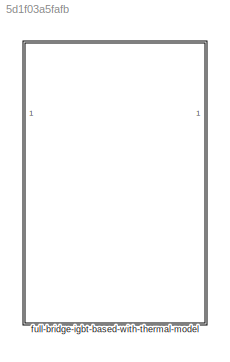
MODEL slx_5d1f03a5fafb
KIND library
CONFIG AbsTol = auto
CONFIG EnableMultiTasking = off
CONFIG FixedStep = auto
CONFIG MaxStep = auto
CONFIG MinStep = auto
CONFIG RelTol = 1e-3
CONFIG SampleTimeConstraint = Unconstrained
CONFIG SolverName = VariableStepAuto
CONFIG StartTime = 0.0
CONFIG StopTime = 10.0
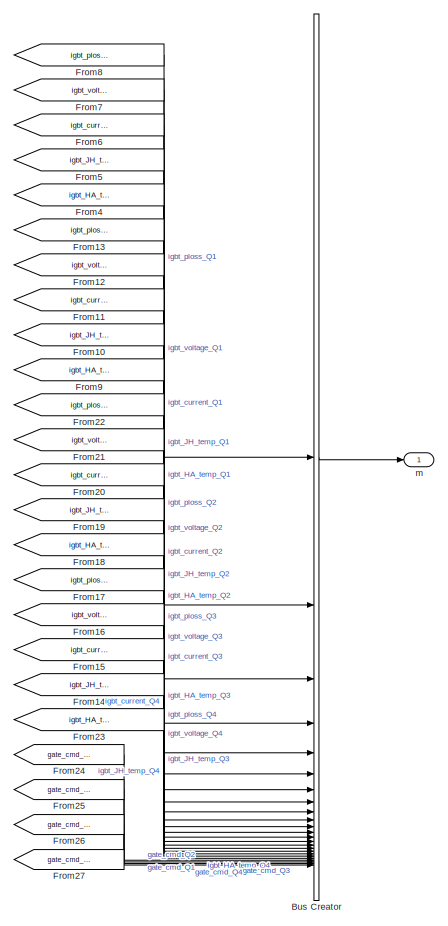
[diagram: full-bridge-igbt-based-with-thermal-model - part 1/2, right side, full height]
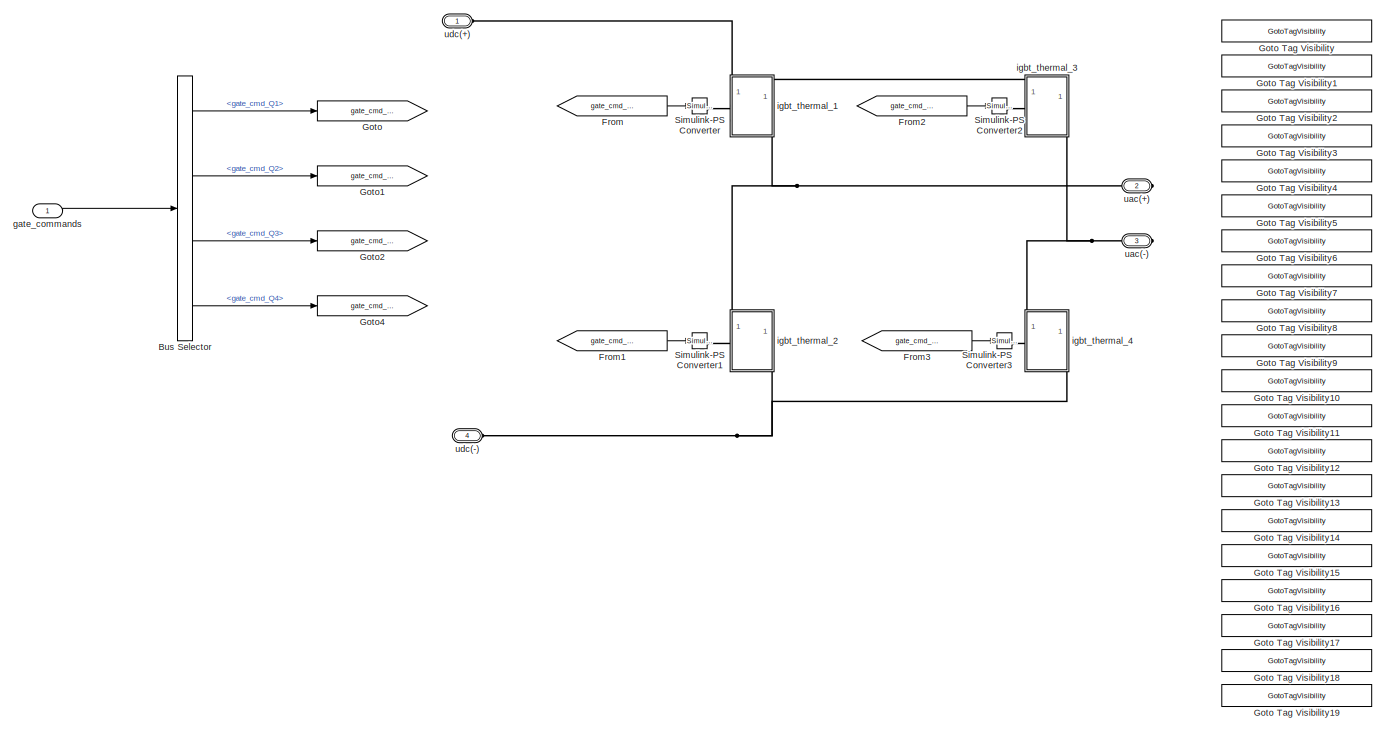
[diagram: full-bridge-igbt-based-with-thermal-model - part 2/2, most of the canvas]
BLOCK [SubSystem] full-bridge-igbt-based-with-thermal-model
BLOCK [BusCreator] full-bridge-igbt-based-with-thermal-model/Bus Creator
  DisplayOption = bar
  InheritFromInputs = on
  Inputs = 24
BLOCK [BusSelector] full-bridge-igbt-based-with-thermal-model/Bus Selector
  OutputSignals = gate_cmd_Q1,gate_cmd_Q2,gate_cmd_Q3,gate_cmd_Q4
BLOCK [From] full-bridge-igbt-based-with-thermal-model/From
  GotoTag = gate_cmd_Q1
BLOCK [From] full-bridge-igbt-based-with-thermal-model/From1
  GotoTag = gate_cmd_Q2
BLOCK [From] full-bridge-igbt-based-with-thermal-model/From10
  GotoTag = igbt_JH_temp_Q2
  TagVisibility = scoped
BLOCK [From] full-bridge-igbt-based-with-thermal-model/From11
  GotoTag = igbt_current_Q2
  TagVisibility = scoped
BLOCK [From] full-bridge-igbt-based-with-thermal-model/From12
  GotoTag = igbt_voltage_Q2
  TagVisibility = scoped
BLOCK [From] full-bridge-igbt-based-with-thermal-model/From13
  GotoTag = igbt_ploss_Q2
  TagVisibility = scoped
BLOCK [From] full-bridge-igbt-based-with-thermal-model/From14
  GotoTag = igbt_JH_temp_Q4
  TagVisibility = scoped
BLOCK [From] full-bridge-igbt-based-with-thermal-model/From15
  GotoTag = igbt_current_Q4
  TagVisibility = scoped
BLOCK [From] full-bridge-igbt-based-with-thermal-model/From16
  GotoTag = igbt_voltage_Q4
  TagVisibility = scoped
BLOCK [From] full-bridge-igbt-based-with-thermal-model/From17
  GotoTag = igbt_ploss_Q4
  TagVisibility = scoped
BLOCK [From] full-bridge-igbt-based-with-thermal-model/From18
  GotoTag = igbt_HA_temp_Q3
  TagVisibility = scoped
BLOCK [From] full-bridge-igbt-based-with-thermal-model/From19
  GotoTag = igbt_JH_temp_Q3
  TagVisibility = scoped
BLOCK [From] full-bridge-igbt-based-with-thermal-model/From2
  GotoTag = gate_cmd_Q3
BLOCK [From] full-bridge-igbt-based-with-thermal-model/From20
  GotoTag = igbt_current_Q3
  TagVisibility = scoped
BLOCK [From] full-bridge-igbt-based-with-thermal-model/From21
  GotoTag = igbt_voltage_Q3
  TagVisibility = scoped
BLOCK [From] full-bridge-igbt-based-with-thermal-model/From22
  GotoTag = igbt_ploss_Q3
  TagVisibility = scoped
BLOCK [From] full-bridge-igbt-based-with-thermal-model/From23
  GotoTag = igbt_HA_temp_Q4
  TagVisibility = scoped
BLOCK [From] full-bridge-igbt-based-with-thermal-model/From24
  GotoTag = gate_cmd_Q1
BLOCK [From] full-bridge-igbt-based-with-thermal-model/From25
  GotoTag = gate_cmd_Q2
BLOCK [From] full-bridge-igbt-based-with-thermal-model/From26
  GotoTag = gate_cmd_Q3
BLOCK [From] full-bridge-igbt-based-with-thermal-model/From27
  GotoTag = gate_cmd_Q4
BLOCK [From] full-bridge-igbt-based-with-thermal-model/From3
  GotoTag = gate_cmd_Q4
BLOCK [From] full-bridge-igbt-based-with-thermal-model/From4
  GotoTag = igbt_HA_temp_Q1
BLOCK [From] full-bridge-igbt-based-with-thermal-model/From5
  GotoTag = igbt_JH_temp_Q1
BLOCK [From] full-bridge-igbt-based-with-thermal-model/From6
  GotoTag = igbt_current_Q1
BLOCK [From] full-bridge-igbt-based-with-thermal-model/From7
  GotoTag = igbt_voltage_Q1
BLOCK [From] full-bridge-igbt-based-with-thermal-model/From8
  GotoTag = igbt_ploss_Q1
BLOCK [From] full-bridge-igbt-based-with-thermal-model/From9
  GotoTag = igbt_HA_temp_Q2
  TagVisibility = scoped
BLOCK [Goto] full-bridge-igbt-based-with-thermal-model/Goto
  GotoTag = gate_cmd_Q1
BLOCK [GotoTagVisibility] full-bridge-igbt-based-with-thermal-model/Goto Tag Visibility
  GotoTag = igbt_ploss_Q1
BLOCK [GotoTagVisibility] full-bridge-igbt-based-with-thermal-model/Goto Tag Visibility1
  GotoTag = igbt_voltage_Q1
BLOCK [GotoTagVisibility] full-bridge-igbt-based-with-thermal-model/Goto Tag Visibility10
  GotoTag = igbt_ploss_Q3
BLOCK [GotoTagVisibility] full-bridge-igbt-based-with-thermal-model/Goto Tag Visibility11
  GotoTag = igbt_voltage_Q3
BLOCK [GotoTagVisibility] full-bridge-igbt-based-with-thermal-model/Goto Tag Visibility12
  GotoTag = igbt_current_Q3
BLOCK [GotoTagVisibility] full-bridge-igbt-based-with-thermal-model/Goto Tag Visibility13
  GotoTag = igbt_JH_temp_Q3
BLOCK [GotoTagVisibility] full-bridge-igbt-based-with-thermal-model/Goto Tag Visibility14
  GotoTag = igbt_HA_temp_Q3
  NameLocation = top
BLOCK [GotoTagVisibility] full-bridge-igbt-based-with-thermal-model/Goto Tag Visibility15
  GotoTag = igbt_ploss_Q4
BLOCK [GotoTagVisibility] full-bridge-igbt-based-with-thermal-model/Goto Tag Visibility16
  GotoTag = igbt_voltage_Q4
BLOCK [GotoTagVisibility] full-bridge-igbt-based-with-thermal-model/Goto Tag Visibility17
  GotoTag = igbt_current_Q4
BLOCK [GotoTagVisibility] full-bridge-igbt-based-with-thermal-model/Goto Tag Visibility18
  GotoTag = igbt_JH_temp_Q4
BLOCK [GotoTagVisibility] full-bridge-igbt-based-with-thermal-model/Goto Tag Visibility19
  GotoTag = igbt_HA_temp_Q4
  NameLocation = top
BLOCK [GotoTagVisibility] full-bridge-igbt-based-with-thermal-model/Goto Tag Visibility2
  GotoTag = igbt_current_Q1
BLOCK [GotoTagVisibility] full-bridge-igbt-based-with-thermal-model/Goto Tag Visibility3
  GotoTag = igbt_JH_temp_Q1
BLOCK [GotoTagVisibility] full-bridge-igbt-based-with-thermal-model/Goto Tag Visibility4
  GotoTag = igbt_HA_temp_Q1
BLOCK [GotoTagVisibility] full-bridge-igbt-based-with-thermal-model/Goto Tag Visibility5
  GotoTag = igbt_ploss_Q2
BLOCK [GotoTagVisibility] full-bridge-igbt-based-with-thermal-model/Goto Tag Visibility6
  GotoTag = igbt_voltage_Q2
BLOCK [GotoTagVisibility] full-bridge-igbt-based-with-thermal-model/Goto Tag Visibility7
  GotoTag = igbt_current_Q2
BLOCK [GotoTagVisibility] full-bridge-igbt-based-with-thermal-model/Goto Tag Visibility8
  GotoTag = igbt_JH_temp_Q2
BLOCK [GotoTagVisibility] full-bridge-igbt-based-with-thermal-model/Goto Tag Visibility9
  GotoTag = igbt_HA_temp_Q2
  NameLocation = top
BLOCK [Goto] full-bridge-igbt-based-with-thermal-model/Goto1
  GotoTag = gate_cmd_Q2
BLOCK [Goto] full-bridge-igbt-based-with-thermal-model/Goto2
  GotoTag = gate_cmd_Q3
BLOCK [Goto] full-bridge-igbt-based-with-thermal-model/Goto4
  GotoTag = gate_cmd_Q4
BLOCK [Reference] full-bridge-igbt-based-with-thermal-model/Simulink-PS Converter  REF=nesl_utility/Simulink-PS
Converter
  SourceBlock = nesl_utility/Simulink-PS\nConverter
  SourceType = Simulink-PS\nConverter
BLOCK [Reference] full-bridge-igbt-based-with-thermal-model/Simulink-PS Converter1  REF=nesl_utility/Simulink-PS
Converter
  SourceBlock = nesl_utility/Simulink-PS\nConverter
  SourceType = Simulink-PS\nConverter
BLOCK [Reference] full-bridge-igbt-based-with-thermal-model/Simulink-PS Converter2  REF=nesl_utility/Simulink-PS
Converter
  SourceBlock = nesl_utility/Simulink-PS\nConverter
  SourceType = Simulink-PS\nConverter
BLOCK [Reference] full-bridge-igbt-based-with-thermal-model/Simulink-PS Converter3  REF=nesl_utility/Simulink-PS
Converter
  SourceBlock = nesl_utility/Simulink-PS\nConverter
  SourceType = Simulink-PS\nConverter
BLOCK [Inport] full-bridge-igbt-based-with-thermal-model/gate_commands
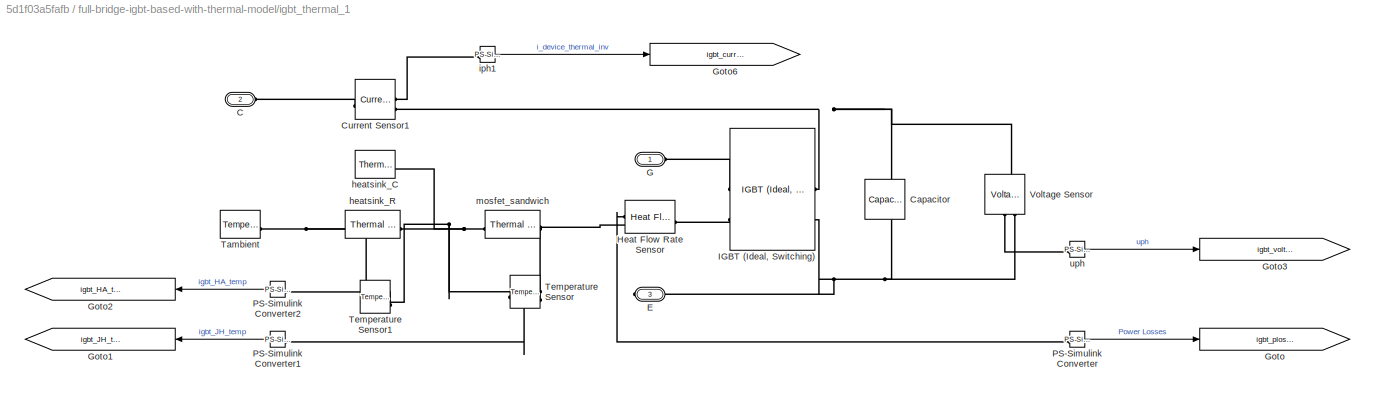
BLOCK [SubSystem] full-bridge-igbt-based-with-thermal-model/igbt_thermal_1
  NameLocation = right
  PortSchema = {"entries":[{"content":{"sides":[{"content":{"connectorIds":["LConn1"]},"type":"ConnectorPlacement.EquallySpacedRectSide","uuid":"9277da8d-d460-43e6-8478-dd662f15d226"},{"content":{"connectorIds":[],"side":"RIGHT"},"type":"ConnectorPlacement.EquallySpacedRectSide","uuid":"a7ece396-f1d9-4f4f-a05b-db1fc65d6e1d"},{"content":{"connectorIds":["LConn2"],"side":"TOP"},"type":"ConnectorPlacement.EquallySp...<+397ch>  <repeated x4 — deduplicated; at blocks: igbt_thermal_1, igbt_thermal_2, igbt_thermal_3, igbt_thermal_4>
BLOCK [PMIOPort] full-bridge-igbt-based-with-thermal-model/igbt_thermal_1/C
  Port = 2
  Side = Left
BLOCK [Reference] full-bridge-igbt-based-with-thermal-model/igbt_thermal_1/Capacitor  REF=fl_lib/Electrical/Electrical Elements/Capacitor
  NameLocation = left
  SourceBlock = fl_lib/Electrical/Electrical Elements/Capacitor
  SourceType = Capacitor
BLOCK [Reference] full-bridge-igbt-based-with-thermal-model/igbt_thermal_1/Current Sensor1  REF=fl_lib/Electrical/Electrical Sensors/Current Sensor
  SourceBlock = fl_lib/Electrical/Electrical Sensors/Current Sensor
  SourceType = Current Sensor
BLOCK [PMIOPort] full-bridge-igbt-based-with-thermal-model/igbt_thermal_1/E
  Port = 3
  Side = Right
BLOCK [PMIOPort] full-bridge-igbt-based-with-thermal-model/igbt_thermal_1/G
  NameLocation = top
  Side = Left
BLOCK [Goto] full-bridge-igbt-based-with-thermal-model/igbt_thermal_1/Goto
  GotoTag = igbt_ploss_Q1
  TagVisibility = scoped
BLOCK [Goto] full-bridge-igbt-based-with-thermal-model/igbt_thermal_1/Goto1
  GotoTag = igbt_JH_temp_Q1
  NameLocation = top
  TagVisibility = scoped
BLOCK [Goto] full-bridge-igbt-based-with-thermal-model/igbt_thermal_1/Goto2
  GotoTag = igbt_HA_temp_Q1
  NameLocation = top
  TagVisibility = scoped
BLOCK [Goto] full-bridge-igbt-based-with-thermal-model/igbt_thermal_1/Goto3
  GotoTag = igbt_voltage_Q1
  TagVisibility = scoped
BLOCK [Goto] full-bridge-igbt-based-with-thermal-model/igbt_thermal_1/Goto6
  GotoTag = igbt_current_Q1
  TagVisibility = scoped
BLOCK [Reference] full-bridge-igbt-based-with-thermal-model/igbt_thermal_1/Heat Flow Rate Sensor  REF=fl_lib/Thermal/Thermal Sensors/Heat Flow Rate
Sensor
  SourceBlock = fl_lib/Thermal/Thermal Sensors/Heat Flow Rate\nSensor
  SourceType = Heat Flow Rate\nSensor
BLOCK [Reference] full-bridge-igbt-based-with-thermal-model/igbt_thermal_1/IGBT (Ideal, Switching)  REF=ee_lib/Semiconductors &
Converters/IGBT
(Ideal,
Switching)
  SourceBlock = ee_lib/Semiconductors &\nConverters/IGBT\n(Ideal,\nSwitching)
  SourceType = IGBT\n(Ideal,\nSwitching)
BLOCK [Reference] full-bridge-igbt-based-with-thermal-model/igbt_thermal_1/PS-Simulink Converter  REF=nesl_utility/PS-Simulink
Converter
  SourceBlock = nesl_utility/PS-Simulink\nConverter
  SourceType = PS-Simulink\nConverter
BLOCK [Reference] full-bridge-igbt-based-with-thermal-model/igbt_thermal_1/PS-Simulink Converter1  REF=nesl_utility/PS-Simulink
Converter
  SourceBlock = nesl_utility/PS-Simulink\nConverter
  SourceType = PS-Simulink\nConverter
BLOCK [Reference] full-bridge-igbt-based-with-thermal-model/igbt_thermal_1/PS-Simulink Converter2  REF=nesl_utility/PS-Simulink
Converter
  NameLocation = right
  SourceBlock = nesl_utility/PS-Simulink\nConverter
  SourceType = PS-Simulink\nConverter
BLOCK [Reference] full-bridge-igbt-based-with-thermal-model/igbt_thermal_1/Tambient  REF=fl_lib/Thermal/Thermal Sources/Temperature Source
  SourceBlock = fl_lib/Thermal/Thermal Sources/Temperature Source
  SourceType = Temperature Source
BLOCK [Reference] full-bridge-igbt-based-with-thermal-model/igbt_thermal_1/Temperature Sensor  REF=fl_lib/Thermal/Thermal Sensors/Temperature Sensor
  NameLocation = top
  SourceBlock = fl_lib/Thermal/Thermal Sensors/Temperature Sensor
  SourceType = Temperature Sensor
BLOCK [Reference] full-bridge-igbt-based-with-thermal-model/igbt_thermal_1/Temperature Sensor1  REF=fl_lib/Thermal/Thermal Sensors/Temperature Sensor
  NameLocation = top
  SourceBlock = fl_lib/Thermal/Thermal Sensors/Temperature Sensor
  SourceType = Temperature Sensor
BLOCK [Reference] full-bridge-igbt-based-with-thermal-model/igbt_thermal_1/Voltage Sensor  REF=fl_lib/Electrical/Electrical Sensors/Voltage Sensor
  NameLocation = right
  SourceBlock = fl_lib/Electrical/Electrical Sensors/Voltage Sensor
  SourceType = Voltage Sensor
BLOCK [Reference] full-bridge-igbt-based-with-thermal-model/igbt_thermal_1/heatsink_C  REF=fl_lib/Thermal/Thermal Elements/Thermal Mass
  SourceBlock = fl_lib/Thermal/Thermal Elements/Thermal Mass
  SourceType = Thermal Mass
BLOCK [Reference] full-bridge-igbt-based-with-thermal-model/igbt_thermal_1/heatsink_R  REF=fl_lib/Thermal/Thermal Elements/Thermal Resistance
  SourceBlock = fl_lib/Thermal/Thermal Elements/Thermal Resistance
  SourceType = Thermal Resistance
BLOCK [Reference] full-bridge-igbt-based-with-thermal-model/igbt_thermal_1/iph1  REF=nesl_utility/PS-Simulink
Converter
  SourceBlock = nesl_utility/PS-Simulink\nConverter
  SourceType = PS-Simulink\nConverter
BLOCK [Reference] full-bridge-igbt-based-with-thermal-model/igbt_thermal_1/mosfet_sandwich  REF=fl_lib/Thermal/Thermal Elements/Thermal Resistance
  SourceBlock = fl_lib/Thermal/Thermal Elements/Thermal Resistance
  SourceType = Thermal Resistance
BLOCK [Reference] full-bridge-igbt-based-with-thermal-model/igbt_thermal_1/uph  REF=nesl_utility/PS-Simulink
Converter
  SourceBlock = nesl_utility/PS-Simulink\nConverter
  SourceType = PS-Simulink\nConverter
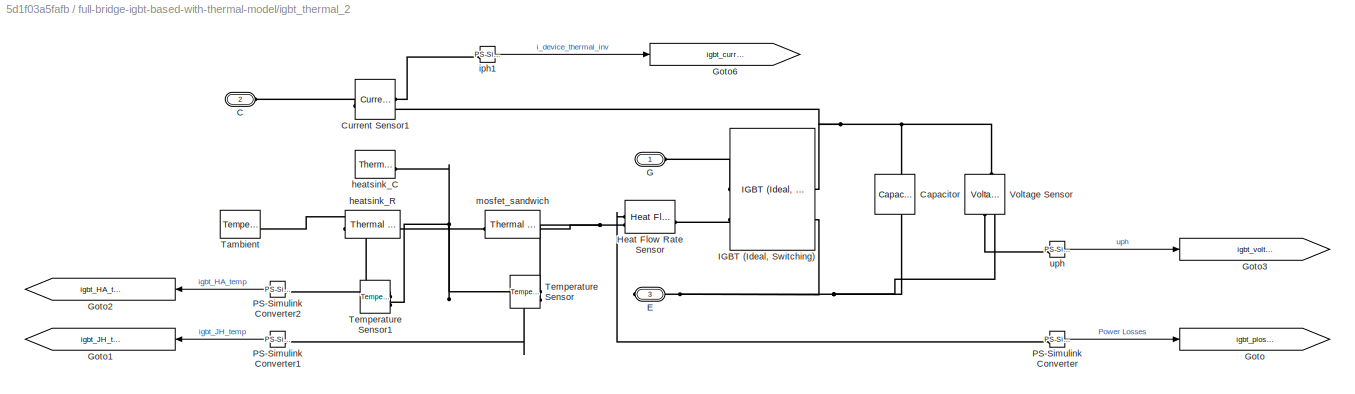
BLOCK [SubSystem] full-bridge-igbt-based-with-thermal-model/igbt_thermal_2
  NameLocation = right
BLOCK [PMIOPort] full-bridge-igbt-based-with-thermal-model/igbt_thermal_2/C
  Port = 2
  Side = Left
BLOCK [Reference] full-bridge-igbt-based-with-thermal-model/igbt_thermal_2/Capacitor  REF=fl_lib/Electrical/Electrical Elements/Capacitor
  NameLocation = left
  SourceBlock = fl_lib/Electrical/Electrical Elements/Capacitor
  SourceType = Capacitor
BLOCK [Reference] full-bridge-igbt-based-with-thermal-model/igbt_thermal_2/Current Sensor1  REF=fl_lib/Electrical/Electrical Sensors/Current Sensor
  SourceBlock = fl_lib/Electrical/Electrical Sensors/Current Sensor
  SourceType = Current Sensor
BLOCK [PMIOPort] full-bridge-igbt-based-with-thermal-model/igbt_thermal_2/E
  Port = 3
  Side = Right
BLOCK [PMIOPort] full-bridge-igbt-based-with-thermal-model/igbt_thermal_2/G
  NameLocation = top
  Side = Left
BLOCK [Goto] full-bridge-igbt-based-with-thermal-model/igbt_thermal_2/Goto
  GotoTag = igbt_ploss_Q2
  TagVisibility = scoped
BLOCK [Goto] full-bridge-igbt-based-with-thermal-model/igbt_thermal_2/Goto1
  GotoTag = igbt_JH_temp_Q2
  NameLocation = top
  TagVisibility = scoped
BLOCK [Goto] full-bridge-igbt-based-with-thermal-model/igbt_thermal_2/Goto2
  GotoTag = igbt_HA_temp_Q2
  NameLocation = top
  TagVisibility = scoped
BLOCK [Goto] full-bridge-igbt-based-with-thermal-model/igbt_thermal_2/Goto3
  GotoTag = igbt_voltage_Q2
  TagVisibility = scoped
BLOCK [Goto] full-bridge-igbt-based-with-thermal-model/igbt_thermal_2/Goto6
  GotoTag = igbt_current_Q2
  TagVisibility = scoped
BLOCK [Reference] full-bridge-igbt-based-with-thermal-model/igbt_thermal_2/Heat Flow Rate Sensor  REF=fl_lib/Thermal/Thermal Sensors/Heat Flow Rate
Sensor
  SourceBlock = fl_lib/Thermal/Thermal Sensors/Heat Flow Rate\nSensor
  SourceType = Heat Flow Rate\nSensor
BLOCK [Reference] full-bridge-igbt-based-with-thermal-model/igbt_thermal_2/IGBT (Ideal, Switching)  REF=ee_lib/Semiconductors &
Converters/IGBT
(Ideal,
Switching)
  SourceBlock = ee_lib/Semiconductors &\nConverters/IGBT\n(Ideal,\nSwitching)
  SourceType = IGBT\n(Ideal,\nSwitching)
BLOCK [Reference] full-bridge-igbt-based-with-thermal-model/igbt_thermal_2/PS-Simulink Converter  REF=nesl_utility/PS-Simulink
Converter
  SourceBlock = nesl_utility/PS-Simulink\nConverter
  SourceType = PS-Simulink\nConverter
BLOCK [Reference] full-bridge-igbt-based-with-thermal-model/igbt_thermal_2/PS-Simulink Converter1  REF=nesl_utility/PS-Simulink
Converter
  SourceBlock = nesl_utility/PS-Simulink\nConverter
  SourceType = PS-Simulink\nConverter
BLOCK [Reference] full-bridge-igbt-based-with-thermal-model/igbt_thermal_2/PS-Simulink Converter2  REF=nesl_utility/PS-Simulink
Converter
  NameLocation = right
  SourceBlock = nesl_utility/PS-Simulink\nConverter
  SourceType = PS-Simulink\nConverter
BLOCK [Reference] full-bridge-igbt-based-with-thermal-model/igbt_thermal_2/Tambient  REF=fl_lib/Thermal/Thermal Sources/Temperature Source
  SourceBlock = fl_lib/Thermal/Thermal Sources/Temperature Source
  SourceType = Temperature Source
BLOCK [Reference] full-bridge-igbt-based-with-thermal-model/igbt_thermal_2/Temperature Sensor  REF=fl_lib/Thermal/Thermal Sensors/Temperature Sensor
  NameLocation = top
  SourceBlock = fl_lib/Thermal/Thermal Sensors/Temperature Sensor
  SourceType = Temperature Sensor
BLOCK [Reference] full-bridge-igbt-based-with-thermal-model/igbt_thermal_2/Temperature Sensor1  REF=fl_lib/Thermal/Thermal Sensors/Temperature Sensor
  NameLocation = top
  SourceBlock = fl_lib/Thermal/Thermal Sensors/Temperature Sensor
  SourceType = Temperature Sensor
BLOCK [Reference] full-bridge-igbt-based-with-thermal-model/igbt_thermal_2/Voltage Sensor  REF=fl_lib/Electrical/Electrical Sensors/Voltage Sensor
  NameLocation = right
  SourceBlock = fl_lib/Electrical/Electrical Sensors/Voltage Sensor
  SourceType = Voltage Sensor
BLOCK [Reference] full-bridge-igbt-based-with-thermal-model/igbt_thermal_2/heatsink_C  REF=fl_lib/Thermal/Thermal Elements/Thermal Mass
  SourceBlock = fl_lib/Thermal/Thermal Elements/Thermal Mass
  SourceType = Thermal Mass
BLOCK [Reference] full-bridge-igbt-based-with-thermal-model/igbt_thermal_2/heatsink_R  REF=fl_lib/Thermal/Thermal Elements/Thermal Resistance
  SourceBlock = fl_lib/Thermal/Thermal Elements/Thermal Resistance
  SourceType = Thermal Resistance
BLOCK [Reference] full-bridge-igbt-based-with-thermal-model/igbt_thermal_2/iph1  REF=nesl_utility/PS-Simulink
Converter
  SourceBlock = nesl_utility/PS-Simulink\nConverter
  SourceType = PS-Simulink\nConverter
BLOCK [Reference] full-bridge-igbt-based-with-thermal-model/igbt_thermal_2/mosfet_sandwich  REF=fl_lib/Thermal/Thermal Elements/Thermal Resistance
  SourceBlock = fl_lib/Thermal/Thermal Elements/Thermal Resistance
  SourceType = Thermal Resistance
BLOCK [Reference] full-bridge-igbt-based-with-thermal-model/igbt_thermal_2/uph  REF=nesl_utility/PS-Simulink
Converter
  SourceBlock = nesl_utility/PS-Simulink\nConverter
  SourceType = PS-Simulink\nConverter
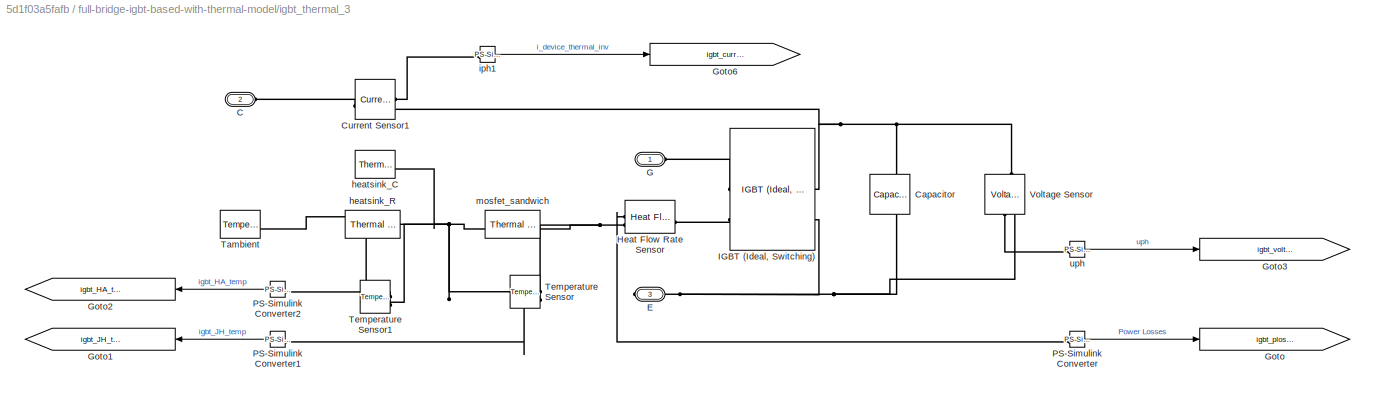
BLOCK [SubSystem] full-bridge-igbt-based-with-thermal-model/igbt_thermal_3
  NameLocation = right
BLOCK [PMIOPort] full-bridge-igbt-based-with-thermal-model/igbt_thermal_3/C
  Port = 2
  Side = Left
BLOCK [Reference] full-bridge-igbt-based-with-thermal-model/igbt_thermal_3/Capacitor  REF=fl_lib/Electrical/Electrical Elements/Capacitor
  NameLocation = left
  SourceBlock = fl_lib/Electrical/Electrical Elements/Capacitor
  SourceType = Capacitor
BLOCK [Reference] full-bridge-igbt-based-with-thermal-model/igbt_thermal_3/Current Sensor1  REF=fl_lib/Electrical/Electrical Sensors/Current Sensor
  SourceBlock = fl_lib/Electrical/Electrical Sensors/Current Sensor
  SourceType = Current Sensor
BLOCK [PMIOPort] full-bridge-igbt-based-with-thermal-model/igbt_thermal_3/E
  Port = 3
  Side = Right
BLOCK [PMIOPort] full-bridge-igbt-based-with-thermal-model/igbt_thermal_3/G
  NameLocation = top
  Side = Left
BLOCK [Goto] full-bridge-igbt-based-with-thermal-model/igbt_thermal_3/Goto
  GotoTag = igbt_ploss_Q3
  TagVisibility = scoped
BLOCK [Goto] full-bridge-igbt-based-with-thermal-model/igbt_thermal_3/Goto1
  GotoTag = igbt_JH_temp_Q3
  NameLocation = top
  TagVisibility = scoped
BLOCK [Goto] full-bridge-igbt-based-with-thermal-model/igbt_thermal_3/Goto2
  GotoTag = igbt_HA_temp_Q3
  NameLocation = top
  TagVisibility = scoped
BLOCK [Goto] full-bridge-igbt-based-with-thermal-model/igbt_thermal_3/Goto3
  GotoTag = igbt_voltage_Q3
  TagVisibility = scoped
BLOCK [Goto] full-bridge-igbt-based-with-thermal-model/igbt_thermal_3/Goto6
  GotoTag = igbt_current_Q3
  TagVisibility = scoped
BLOCK [Reference] full-bridge-igbt-based-with-thermal-model/igbt_thermal_3/Heat Flow Rate Sensor  REF=fl_lib/Thermal/Thermal Sensors/Heat Flow Rate
Sensor
  SourceBlock = fl_lib/Thermal/Thermal Sensors/Heat Flow Rate\nSensor
  SourceType = Heat Flow Rate\nSensor
BLOCK [Reference] full-bridge-igbt-based-with-thermal-model/igbt_thermal_3/IGBT (Ideal, Switching)  REF=ee_lib/Semiconductors &
Converters/IGBT
(Ideal,
Switching)
  SourceBlock = ee_lib/Semiconductors &\nConverters/IGBT\n(Ideal,\nSwitching)
  SourceType = IGBT\n(Ideal,\nSwitching)
BLOCK [Reference] full-bridge-igbt-based-with-thermal-model/igbt_thermal_3/PS-Simulink Converter  REF=nesl_utility/PS-Simulink
Converter
  SourceBlock = nesl_utility/PS-Simulink\nConverter
  SourceType = PS-Simulink\nConverter
BLOCK [Reference] full-bridge-igbt-based-with-thermal-model/igbt_thermal_3/PS-Simulink Converter1  REF=nesl_utility/PS-Simulink
Converter
  SourceBlock = nesl_utility/PS-Simulink\nConverter
  SourceType = PS-Simulink\nConverter
BLOCK [Reference] full-bridge-igbt-based-with-thermal-model/igbt_thermal_3/PS-Simulink Converter2  REF=nesl_utility/PS-Simulink
Converter
  NameLocation = right
  SourceBlock = nesl_utility/PS-Simulink\nConverter
  SourceType = PS-Simulink\nConverter
BLOCK [Reference] full-bridge-igbt-based-with-thermal-model/igbt_thermal_3/Tambient  REF=fl_lib/Thermal/Thermal Sources/Temperature Source
  SourceBlock = fl_lib/Thermal/Thermal Sources/Temperature Source
  SourceType = Temperature Source
BLOCK [Reference] full-bridge-igbt-based-with-thermal-model/igbt_thermal_3/Temperature Sensor  REF=fl_lib/Thermal/Thermal Sensors/Temperature Sensor
  NameLocation = top
  SourceBlock = fl_lib/Thermal/Thermal Sensors/Temperature Sensor
  SourceType = Temperature Sensor
BLOCK [Reference] full-bridge-igbt-based-with-thermal-model/igbt_thermal_3/Temperature Sensor1  REF=fl_lib/Thermal/Thermal Sensors/Temperature Sensor
  NameLocation = top
  SourceBlock = fl_lib/Thermal/Thermal Sensors/Temperature Sensor
  SourceType = Temperature Sensor
BLOCK [Reference] full-bridge-igbt-based-with-thermal-model/igbt_thermal_3/Voltage Sensor  REF=fl_lib/Electrical/Electrical Sensors/Voltage Sensor
  NameLocation = right
  SourceBlock = fl_lib/Electrical/Electrical Sensors/Voltage Sensor
  SourceType = Voltage Sensor
BLOCK [Reference] full-bridge-igbt-based-with-thermal-model/igbt_thermal_3/heatsink_C  REF=fl_lib/Thermal/Thermal Elements/Thermal Mass
  SourceBlock = fl_lib/Thermal/Thermal Elements/Thermal Mass
  SourceType = Thermal Mass
BLOCK [Reference] full-bridge-igbt-based-with-thermal-model/igbt_thermal_3/heatsink_R  REF=fl_lib/Thermal/Thermal Elements/Thermal Resistance
  SourceBlock = fl_lib/Thermal/Thermal Elements/Thermal Resistance
  SourceType = Thermal Resistance
BLOCK [Reference] full-bridge-igbt-based-with-thermal-model/igbt_thermal_3/iph1  REF=nesl_utility/PS-Simulink
Converter
  SourceBlock = nesl_utility/PS-Simulink\nConverter
  SourceType = PS-Simulink\nConverter
BLOCK [Reference] full-bridge-igbt-based-with-thermal-model/igbt_thermal_3/mosfet_sandwich  REF=fl_lib/Thermal/Thermal Elements/Thermal Resistance
  SourceBlock = fl_lib/Thermal/Thermal Elements/Thermal Resistance
  SourceType = Thermal Resistance
BLOCK [Reference] full-bridge-igbt-based-with-thermal-model/igbt_thermal_3/uph  REF=nesl_utility/PS-Simulink
Converter
  SourceBlock = nesl_utility/PS-Simulink\nConverter
  SourceType = PS-Simulink\nConverter
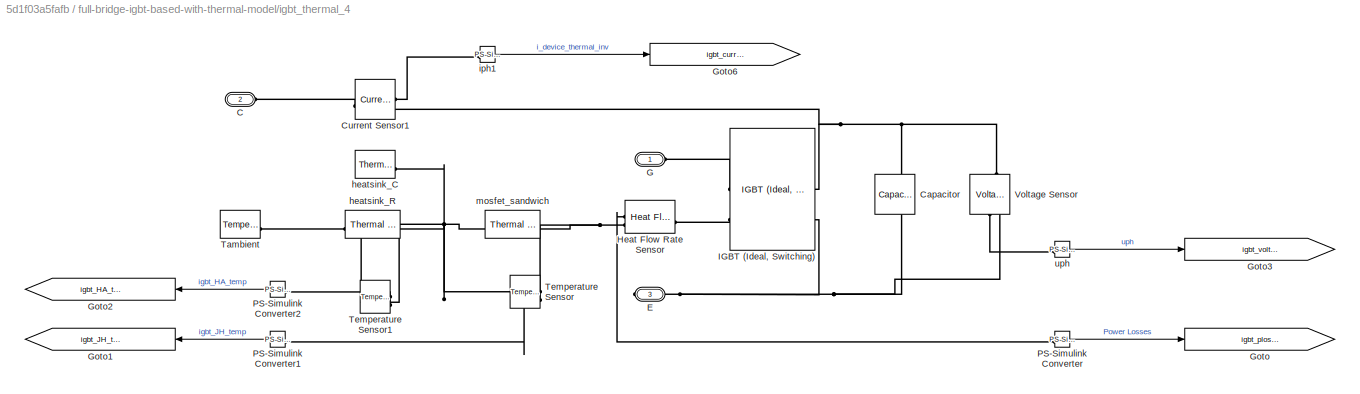
BLOCK [SubSystem] full-bridge-igbt-based-with-thermal-model/igbt_thermal_4
  NameLocation = right
BLOCK [PMIOPort] full-bridge-igbt-based-with-thermal-model/igbt_thermal_4/C
  Port = 2
  Side = Left
BLOCK [Reference] full-bridge-igbt-based-with-thermal-model/igbt_thermal_4/Capacitor  REF=fl_lib/Electrical/Electrical Elements/Capacitor
  NameLocation = left
  SourceBlock = fl_lib/Electrical/Electrical Elements/Capacitor
  SourceType = Capacitor
BLOCK [Reference] full-bridge-igbt-based-with-thermal-model/igbt_thermal_4/Current Sensor1  REF=fl_lib/Electrical/Electrical Sensors/Current Sensor
  SourceBlock = fl_lib/Electrical/Electrical Sensors/Current Sensor
  SourceType = Current Sensor
BLOCK [PMIOPort] full-bridge-igbt-based-with-thermal-model/igbt_thermal_4/E
  Port = 3
  Side = Right
BLOCK [PMIOPort] full-bridge-igbt-based-with-thermal-model/igbt_thermal_4/G
  NameLocation = top
  Side = Left
BLOCK [Goto] full-bridge-igbt-based-with-thermal-model/igbt_thermal_4/Goto
  GotoTag = igbt_ploss_Q4
  TagVisibility = scoped
BLOCK [Goto] full-bridge-igbt-based-with-thermal-model/igbt_thermal_4/Goto1
  GotoTag = igbt_JH_temp_Q4
  NameLocation = top
  TagVisibility = scoped
BLOCK [Goto] full-bridge-igbt-based-with-thermal-model/igbt_thermal_4/Goto2
  GotoTag = igbt_HA_temp_Q4
  NameLocation = top
  TagVisibility = scoped
BLOCK [Goto] full-bridge-igbt-based-with-thermal-model/igbt_thermal_4/Goto3
  GotoTag = igbt_voltage_Q4
  TagVisibility = scoped
BLOCK [Goto] full-bridge-igbt-based-with-thermal-model/igbt_thermal_4/Goto6
  GotoTag = igbt_current_Q4
  TagVisibility = scoped
BLOCK [Reference] full-bridge-igbt-based-with-thermal-model/igbt_thermal_4/Heat Flow Rate Sensor  REF=fl_lib/Thermal/Thermal Sensors/Heat Flow Rate
Sensor
  SourceBlock = fl_lib/Thermal/Thermal Sensors/Heat Flow Rate\nSensor
  SourceType = Heat Flow Rate\nSensor
BLOCK [Reference] full-bridge-igbt-based-with-thermal-model/igbt_thermal_4/IGBT (Ideal, Switching)  REF=ee_lib/Semiconductors &
Converters/IGBT
(Ideal,
Switching)
  SourceBlock = ee_lib/Semiconductors &\nConverters/IGBT\n(Ideal,\nSwitching)
  SourceType = IGBT\n(Ideal,\nSwitching)
BLOCK [Reference] full-bridge-igbt-based-with-thermal-model/igbt_thermal_4/PS-Simulink Converter  REF=nesl_utility/PS-Simulink
Converter
  SourceBlock = nesl_utility/PS-Simulink\nConverter
  SourceType = PS-Simulink\nConverter
BLOCK [Reference] full-bridge-igbt-based-with-thermal-model/igbt_thermal_4/PS-Simulink Converter1  REF=nesl_utility/PS-Simulink
Converter
  SourceBlock = nesl_utility/PS-Simulink\nConverter
  SourceType = PS-Simulink\nConverter
BLOCK [Reference] full-bridge-igbt-based-with-thermal-model/igbt_thermal_4/PS-Simulink Converter2  REF=nesl_utility/PS-Simulink
Converter
  NameLocation = right
  SourceBlock = nesl_utility/PS-Simulink\nConverter
  SourceType = PS-Simulink\nConverter
BLOCK [Reference] full-bridge-igbt-based-with-thermal-model/igbt_thermal_4/Tambient  REF=fl_lib/Thermal/Thermal Sources/Temperature Source
  SourceBlock = fl_lib/Thermal/Thermal Sources/Temperature Source
  SourceType = Temperature Source
BLOCK [Reference] full-bridge-igbt-based-with-thermal-model/igbt_thermal_4/Temperature Sensor  REF=fl_lib/Thermal/Thermal Sensors/Temperature Sensor
  NameLocation = top
  SourceBlock = fl_lib/Thermal/Thermal Sensors/Temperature Sensor
  SourceType = Temperature Sensor
BLOCK [Reference] full-bridge-igbt-based-with-thermal-model/igbt_thermal_4/Temperature Sensor1  REF=fl_lib/Thermal/Thermal Sensors/Temperature Sensor
  NameLocation = top
  SourceBlock = fl_lib/Thermal/Thermal Sensors/Temperature Sensor
  SourceType = Temperature Sensor
BLOCK [Reference] full-bridge-igbt-based-with-thermal-model/igbt_thermal_4/Voltage Sensor  REF=fl_lib/Electrical/Electrical Sensors/Voltage Sensor
  NameLocation = right
  SourceBlock = fl_lib/Electrical/Electrical Sensors/Voltage Sensor
  SourceType = Voltage Sensor
BLOCK [Reference] full-bridge-igbt-based-with-thermal-model/igbt_thermal_4/heatsink_C  REF=fl_lib/Thermal/Thermal Elements/Thermal Mass
  SourceBlock = fl_lib/Thermal/Thermal Elements/Thermal Mass
  SourceType = Thermal Mass
BLOCK [Reference] full-bridge-igbt-based-with-thermal-model/igbt_thermal_4/heatsink_R  REF=fl_lib/Thermal/Thermal Elements/Thermal Resistance
  SourceBlock = fl_lib/Thermal/Thermal Elements/Thermal Resistance
  SourceType = Thermal Resistance
BLOCK [Reference] full-bridge-igbt-based-with-thermal-model/igbt_thermal_4/iph1  REF=nesl_utility/PS-Simulink
Converter
  SourceBlock = nesl_utility/PS-Simulink\nConverter
  SourceType = PS-Simulink\nConverter
BLOCK [Reference] full-bridge-igbt-based-with-thermal-model/igbt_thermal_4/mosfet_sandwich  REF=fl_lib/Thermal/Thermal Elements/Thermal Resistance
  SourceBlock = fl_lib/Thermal/Thermal Elements/Thermal Resistance
  SourceType = Thermal Resistance
BLOCK [Reference] full-bridge-igbt-based-with-thermal-model/igbt_thermal_4/uph  REF=nesl_utility/PS-Simulink
Converter
  SourceBlock = nesl_utility/PS-Simulink\nConverter
  SourceType = PS-Simulink\nConverter
BLOCK [Outport] full-bridge-igbt-based-with-thermal-model/m
BLOCK [PMIOPort] full-bridge-igbt-based-with-thermal-model/uac(+)
  Port = 2
  Side = Right
BLOCK [PMIOPort] full-bridge-igbt-based-with-thermal-model/uac(-)
  Port = 3
  Side = Right
BLOCK [PMIOPort] full-bridge-igbt-based-with-thermal-model/udc(+)
  Side = Left
BLOCK [PMIOPort] full-bridge-igbt-based-with-thermal-model/udc(-)
  Port = 4
  Side = Left
LINE full-bridge-igbt-based-with-thermal-model/Bus Creator:1 -> full-bridge-igbt-based-with-thermal-model/m:1
LINE full-bridge-igbt-based-with-thermal-model/Bus Selector:1 -> full-bridge-igbt-based-with-thermal-model/Goto:1
LINE full-bridge-igbt-based-with-thermal-model/Bus Selector:2 -> full-bridge-igbt-based-with-thermal-model/Goto1:1
LINE full-bridge-igbt-based-with-thermal-model/Bus Selector:3 -> full-bridge-igbt-based-with-thermal-model/Goto2:1
LINE full-bridge-igbt-based-with-thermal-model/Bus Selector:4 -> full-bridge-igbt-based-with-thermal-model/Goto4:1
LINE full-bridge-igbt-based-with-thermal-model/From10:1 -> full-bridge-igbt-based-with-thermal-model/Bus Creator:9
LINE full-bridge-igbt-based-with-thermal-model/From11:1 -> full-bridge-igbt-based-with-thermal-model/Bus Creator:8
LINE full-bridge-igbt-based-with-thermal-model/From12:1 -> full-bridge-igbt-based-with-thermal-model/Bus Creator:7
LINE full-bridge-igbt-based-with-thermal-model/From13:1 -> full-bridge-igbt-based-with-thermal-model/Bus Creator:6
LINE full-bridge-igbt-based-with-thermal-model/From14:1 -> full-bridge-igbt-based-with-thermal-model/Bus Creator:19
LINE full-bridge-igbt-based-with-thermal-model/From15:1 -> full-bridge-igbt-based-with-thermal-model/Bus Creator:18
LINE full-bridge-igbt-based-with-thermal-model/From16:1 -> full-bridge-igbt-based-with-thermal-model/Bus Creator:17
LINE full-bridge-igbt-based-with-thermal-model/From17:1 -> full-bridge-igbt-based-with-thermal-model/Bus Creator:16
LINE full-bridge-igbt-based-with-thermal-model/From18:1 -> full-bridge-igbt-based-with-thermal-model/Bus Creator:15
LINE full-bridge-igbt-based-with-thermal-model/From19:1 -> full-bridge-igbt-based-with-thermal-model/Bus Creator:14
LINE full-bridge-igbt-based-with-thermal-model/From1:1 -> full-bridge-igbt-based-with-thermal-model/Simulink-PS Converter1:1
LINE full-bridge-igbt-based-with-thermal-model/From20:1 -> full-bridge-igbt-based-with-thermal-model/Bus Creator:13
LINE full-bridge-igbt-based-with-thermal-model/From21:1 -> full-bridge-igbt-based-with-thermal-model/Bus Creator:12
LINE full-bridge-igbt-based-with-thermal-model/From22:1 -> full-bridge-igbt-based-with-thermal-model/Bus Creator:11
LINE full-bridge-igbt-based-with-thermal-model/From23:1 -> full-bridge-igbt-based-with-thermal-model/Bus Creator:20
LINE full-bridge-igbt-based-with-thermal-model/From24:1 -> full-bridge-igbt-based-with-thermal-model/Bus Creator:21
LINE full-bridge-igbt-based-with-thermal-model/From25:1 -> full-bridge-igbt-based-with-thermal-model/Bus Creator:22
LINE full-bridge-igbt-based-with-thermal-model/From26:1 -> full-bridge-igbt-based-with-thermal-model/Bus Creator:23
LINE full-bridge-igbt-based-with-thermal-model/From27:1 -> full-bridge-igbt-based-with-thermal-model/Bus Creator:24
LINE full-bridge-igbt-based-with-thermal-model/From2:1 -> full-bridge-igbt-based-with-thermal-model/Simulink-PS Converter2:1
LINE full-bridge-igbt-based-with-thermal-model/From3:1 -> full-bridge-igbt-based-with-thermal-model/Simulink-PS Converter3:1
LINE full-bridge-igbt-based-with-thermal-model/From4:1 -> full-bridge-igbt-based-with-thermal-model/Bus Creator:5
LINE full-bridge-igbt-based-with-thermal-model/From5:1 -> full-bridge-igbt-based-with-thermal-model/Bus Creator:4
LINE full-bridge-igbt-based-with-thermal-model/From6:1 -> full-bridge-igbt-based-with-thermal-model/Bus Creator:3
LINE full-bridge-igbt-based-with-thermal-model/From7:1 -> full-bridge-igbt-based-with-thermal-model/Bus Creator:2
LINE full-bridge-igbt-based-with-thermal-model/From8:1 -> full-bridge-igbt-based-with-thermal-model/Bus Creator:1
LINE full-bridge-igbt-based-with-thermal-model/From9:1 -> full-bridge-igbt-based-with-thermal-model/Bus Creator:10
LINE full-bridge-igbt-based-with-thermal-model/From:1 -> full-bridge-igbt-based-with-thermal-model/Simulink-PS Converter:1
LINE full-bridge-igbt-based-with-thermal-model/gate_commands:1 -> full-bridge-igbt-based-with-thermal-model/Bus Selector:1
LINE full-bridge-igbt-based-with-thermal-model/igbt_thermal_1/PS-Simulink Converter1:1 -> full-bridge-igbt-based-with-thermal-model/igbt_thermal_1/Goto1:1
LINE full-bridge-igbt-based-with-thermal-model/igbt_thermal_1/PS-Simulink Converter2:1 -> full-bridge-igbt-based-with-thermal-model/igbt_thermal_1/Goto2:1
LINE full-bridge-igbt-based-with-thermal-model/igbt_thermal_1/PS-Simulink Converter:1 -> full-bridge-igbt-based-with-thermal-model/igbt_thermal_1/Goto:1
LINE full-bridge-igbt-based-with-thermal-model/igbt_thermal_1/iph1:1 -> full-bridge-igbt-based-with-thermal-model/igbt_thermal_1/Goto6:1
LINE full-bridge-igbt-based-with-thermal-model/igbt_thermal_1/uph:1 -> full-bridge-igbt-based-with-thermal-model/igbt_thermal_1/Goto3:1
LINE full-bridge-igbt-based-with-thermal-model/igbt_thermal_2/PS-Simulink Converter1:1 -> full-bridge-igbt-based-with-thermal-model/igbt_thermal_2/Goto1:1
LINE full-bridge-igbt-based-with-thermal-model/igbt_thermal_2/PS-Simulink Converter2:1 -> full-bridge-igbt-based-with-thermal-model/igbt_thermal_2/Goto2:1
LINE full-bridge-igbt-based-with-thermal-model/igbt_thermal_2/PS-Simulink Converter:1 -> full-bridge-igbt-based-with-thermal-model/igbt_thermal_2/Goto:1
LINE full-bridge-igbt-based-with-thermal-model/igbt_thermal_2/iph1:1 -> full-bridge-igbt-based-with-thermal-model/igbt_thermal_2/Goto6:1
LINE full-bridge-igbt-based-with-thermal-model/igbt_thermal_2/uph:1 -> full-bridge-igbt-based-with-thermal-model/igbt_thermal_2/Goto3:1
LINE full-bridge-igbt-based-with-thermal-model/igbt_thermal_3/PS-Simulink Converter1:1 -> full-bridge-igbt-based-with-thermal-model/igbt_thermal_3/Goto1:1
LINE full-bridge-igbt-based-with-thermal-model/igbt_thermal_3/PS-Simulink Converter2:1 -> full-bridge-igbt-based-with-thermal-model/igbt_thermal_3/Goto2:1
LINE full-bridge-igbt-based-with-thermal-model/igbt_thermal_3/PS-Simulink Converter:1 -> full-bridge-igbt-based-with-thermal-model/igbt_thermal_3/Goto:1
LINE full-bridge-igbt-based-with-thermal-model/igbt_thermal_3/iph1:1 -> full-bridge-igbt-based-with-thermal-model/igbt_thermal_3/Goto6:1
LINE full-bridge-igbt-based-with-thermal-model/igbt_thermal_3/uph:1 -> full-bridge-igbt-based-with-thermal-model/igbt_thermal_3/Goto3:1
LINE full-bridge-igbt-based-with-thermal-model/igbt_thermal_4/PS-Simulink Converter1:1 -> full-bridge-igbt-based-with-thermal-model/igbt_thermal_4/Goto1:1
LINE full-bridge-igbt-based-with-thermal-model/igbt_thermal_4/PS-Simulink Converter2:1 -> full-bridge-igbt-based-with-thermal-model/igbt_thermal_4/Goto2:1
LINE full-bridge-igbt-based-with-thermal-model/igbt_thermal_4/PS-Simulink Converter:1 -> full-bridge-igbt-based-with-thermal-model/igbt_thermal_4/Goto:1
LINE full-bridge-igbt-based-with-thermal-model/igbt_thermal_4/iph1:1 -> full-bridge-igbt-based-with-thermal-model/igbt_thermal_4/Goto6:1
LINE full-bridge-igbt-based-with-thermal-model/igbt_thermal_4/uph:1 -> full-bridge-igbt-based-with-thermal-model/igbt_thermal_4/Goto3:1
PLINE full-bridge-igbt-based-with-thermal-model/Simulink-PS Converter1:RConn1 -- full-bridge-igbt-based-with-thermal-model/igbt_thermal_2:LConn1
PLINE full-bridge-igbt-based-with-thermal-model/Simulink-PS Converter2:RConn1 -- full-bridge-igbt-based-with-thermal-model/igbt_thermal_3:LConn1
PLINE full-bridge-igbt-based-with-thermal-model/Simulink-PS Converter3:RConn1 -- full-bridge-igbt-based-with-thermal-model/igbt_thermal_4:LConn1
PLINE full-bridge-igbt-based-with-thermal-model/Simulink-PS Converter:RConn1 -- full-bridge-igbt-based-with-thermal-model/igbt_thermal_1:LConn1
PLINE full-bridge-igbt-based-with-thermal-model/igbt_thermal_1/C:RConn1 -- full-bridge-igbt-based-with-thermal-model/igbt_thermal_1/Current Sensor1:LConn1
PNET net1: full-bridge-igbt-based-with-thermal-model/igbt_thermal_1/Capacitor:LConn1 -- full-bridge-igbt-based-with-thermal-model/igbt_thermal_1/Current Sensor1:RConn2 -- full-bridge-igbt-based-with-thermal-model/igbt_thermal_1/IGBT (Ideal, Switching):RConn1 -- full-bridge-igbt-based-with-thermal-model/igbt_thermal_1/Voltage Sensor:LConn1
PNET net2: full-bridge-igbt-based-with-thermal-model/igbt_thermal_1/Capacitor:RConn1 -- full-bridge-igbt-based-with-thermal-model/igbt_thermal_1/E:RConn1 -- full-bridge-igbt-based-with-thermal-model/igbt_thermal_1/IGBT (Ideal, Switching):RConn2 -- full-bridge-igbt-based-with-thermal-model/igbt_thermal_1/Voltage Sensor:RConn2
PLINE full-bridge-igbt-based-with-thermal-model/igbt_thermal_1/Current Sensor1:RConn1 -- full-bridge-igbt-based-with-thermal-model/igbt_thermal_1/iph1:LConn1
PLINE full-bridge-igbt-based-with-thermal-model/igbt_thermal_1/G:RConn1 -- full-bridge-igbt-based-with-thermal-model/igbt_thermal_1/IGBT (Ideal, Switching):LConn1
PLINE full-bridge-igbt-based-with-thermal-model/igbt_thermal_1/Heat Flow Rate Sensor:LConn1 -- full-bridge-igbt-based-with-thermal-model/igbt_thermal_1/IGBT (Ideal, Switching):LConn2
PLINE full-bridge-igbt-based-with-thermal-model/igbt_thermal_1/Heat Flow Rate Sensor:RConn1 -- full-bridge-igbt-based-with-thermal-model/igbt_thermal_1/PS-Simulink Converter:LConn1
PNET net3: full-bridge-igbt-based-with-thermal-model/igbt_thermal_1/Heat Flow Rate Sensor:RConn2 -- full-bridge-igbt-based-with-thermal-model/igbt_thermal_1/Temperature Sensor:LConn1 -- full-bridge-igbt-based-with-thermal-model/igbt_thermal_1/mosfet_sandwich:LConn1
PLINE full-bridge-igbt-based-with-thermal-model/igbt_thermal_1/PS-Simulink Converter1:LConn1 -- full-bridge-igbt-based-with-thermal-model/igbt_thermal_1/Temperature Sensor:RConn2
PLINE full-bridge-igbt-based-with-thermal-model/igbt_thermal_1/PS-Simulink Converter2:LConn1 -- full-bridge-igbt-based-with-thermal-model/igbt_thermal_1/Temperature Sensor1:RConn2
PNET net4: full-bridge-igbt-based-with-thermal-model/igbt_thermal_1/Tambient:LConn1 -- full-bridge-igbt-based-with-thermal-model/igbt_thermal_1/Temperature Sensor1:RConn1 -- full-bridge-igbt-based-with-thermal-model/igbt_thermal_1/heatsink_R:RConn1
PNET net5: full-bridge-igbt-based-with-thermal-model/igbt_thermal_1/Temperature Sensor1:LConn1 -- full-bridge-igbt-based-with-thermal-model/igbt_thermal_1/Temperature Sensor:RConn1 -- full-bridge-igbt-based-with-thermal-model/igbt_thermal_1/heatsink_C:LConn1 -- full-bridge-igbt-based-with-thermal-model/igbt_thermal_1/heatsink_R:LConn1 -- full-bridge-igbt-based-with-thermal-model/igbt_thermal_1/mosfet_sandwich:RConn1
PLINE full-bridge-igbt-based-with-thermal-model/igbt_thermal_1/Voltage Sensor:RConn1 -- full-bridge-igbt-based-with-thermal-model/igbt_thermal_1/uph:LConn1
PNET net6: full-bridge-igbt-based-with-thermal-model/igbt_thermal_1:LConn2 -- full-bridge-igbt-based-with-thermal-model/igbt_thermal_3:LConn2 -- full-bridge-igbt-based-with-thermal-model/udc(+):RConn1
PNET net7: full-bridge-igbt-based-with-thermal-model/igbt_thermal_1:RConn1 -- full-bridge-igbt-based-with-thermal-model/igbt_thermal_2:LConn2 -- full-bridge-igbt-based-with-thermal-model/uac(+):RConn1
PLINE full-bridge-igbt-based-with-thermal-model/igbt_thermal_2/C:RConn1 -- full-bridge-igbt-based-with-thermal-model/igbt_thermal_2/Current Sensor1:LConn1
PNET net8: full-bridge-igbt-based-with-thermal-model/igbt_thermal_2/Capacitor:LConn1 -- full-bridge-igbt-based-with-thermal-model/igbt_thermal_2/Current Sensor1:RConn2 -- full-bridge-igbt-based-with-thermal-model/igbt_thermal_2/IGBT (Ideal, Switching):RConn1 -- full-bridge-igbt-based-with-thermal-model/igbt_thermal_2/Voltage Sensor:LConn1
PNET net9: full-bridge-igbt-based-with-thermal-model/igbt_thermal_2/Capacitor:RConn1 -- full-bridge-igbt-based-with-thermal-model/igbt_thermal_2/E:RConn1 -- full-bridge-igbt-based-with-thermal-model/igbt_thermal_2/IGBT (Ideal, Switching):RConn2 -- full-bridge-igbt-based-with-thermal-model/igbt_thermal_2/Voltage Sensor:RConn2
PLINE full-bridge-igbt-based-with-thermal-model/igbt_thermal_2/Current Sensor1:RConn1 -- full-bridge-igbt-based-with-thermal-model/igbt_thermal_2/iph1:LConn1
PLINE full-bridge-igbt-based-with-thermal-model/igbt_thermal_2/G:RConn1 -- full-bridge-igbt-based-with-thermal-model/igbt_thermal_2/IGBT (Ideal, Switching):LConn1
PLINE full-bridge-igbt-based-with-thermal-model/igbt_thermal_2/Heat Flow Rate Sensor:LConn1 -- full-bridge-igbt-based-with-thermal-model/igbt_thermal_2/IGBT (Ideal, Switching):LConn2
PLINE full-bridge-igbt-based-with-thermal-model/igbt_thermal_2/Heat Flow Rate Sensor:RConn1 -- full-bridge-igbt-based-with-thermal-model/igbt_thermal_2/PS-Simulink Converter:LConn1
PNET net10: full-bridge-igbt-based-with-thermal-model/igbt_thermal_2/Heat Flow Rate Sensor:RConn2 -- full-bridge-igbt-based-with-thermal-model/igbt_thermal_2/Temperature Sensor:LConn1 -- full-bridge-igbt-based-with-thermal-model/igbt_thermal_2/mosfet_sandwich:LConn1
PLINE full-bridge-igbt-based-with-thermal-model/igbt_thermal_2/PS-Simulink Converter1:LConn1 -- full-bridge-igbt-based-with-thermal-model/igbt_thermal_2/Temperature Sensor:RConn2
PLINE full-bridge-igbt-based-with-thermal-model/igbt_thermal_2/PS-Simulink Converter2:LConn1 -- full-bridge-igbt-based-with-thermal-model/igbt_thermal_2/Temperature Sensor1:RConn2
PNET net11: full-bridge-igbt-based-with-thermal-model/igbt_thermal_2/Tambient:LConn1 -- full-bridge-igbt-based-with-thermal-model/igbt_thermal_2/Temperature Sensor1:RConn1 -- full-bridge-igbt-based-with-thermal-model/igbt_thermal_2/heatsink_R:RConn1
PNET net12: full-bridge-igbt-based-with-thermal-model/igbt_thermal_2/Temperature Sensor1:LConn1 -- full-bridge-igbt-based-with-thermal-model/igbt_thermal_2/Temperature Sensor:RConn1 -- full-bridge-igbt-based-with-thermal-model/igbt_thermal_2/heatsink_C:LConn1 -- full-bridge-igbt-based-with-thermal-model/igbt_thermal_2/heatsink_R:LConn1 -- full-bridge-igbt-based-with-thermal-model/igbt_thermal_2/mosfet_sandwich:RConn1
PLINE full-bridge-igbt-based-with-thermal-model/igbt_thermal_2/Voltage Sensor:RConn1 -- full-bridge-igbt-based-with-thermal-model/igbt_thermal_2/uph:LConn1
PNET net13: full-bridge-igbt-based-with-thermal-model/igbt_thermal_2:RConn1 -- full-bridge-igbt-based-with-thermal-model/igbt_thermal_4:RConn1 -- full-bridge-igbt-based-with-thermal-model/udc(-):RConn1
PLINE full-bridge-igbt-based-with-thermal-model/igbt_thermal_3/C:RConn1 -- full-bridge-igbt-based-with-thermal-model/igbt_thermal_3/Current Sensor1:LConn1
PNET net14: full-bridge-igbt-based-with-thermal-model/igbt_thermal_3/Capacitor:LConn1 -- full-bridge-igbt-based-with-thermal-model/igbt_thermal_3/Current Sensor1:RConn2 -- full-bridge-igbt-based-with-thermal-model/igbt_thermal_3/IGBT (Ideal, Switching):RConn1 -- full-bridge-igbt-based-with-thermal-model/igbt_thermal_3/Voltage Sensor:LConn1
PNET net15: full-bridge-igbt-based-with-thermal-model/igbt_thermal_3/Capacitor:RConn1 -- full-bridge-igbt-based-with-thermal-model/igbt_thermal_3/E:RConn1 -- full-bridge-igbt-based-with-thermal-model/igbt_thermal_3/IGBT (Ideal, Switching):RConn2 -- full-bridge-igbt-based-with-thermal-model/igbt_thermal_3/Voltage Sensor:RConn2
PLINE full-bridge-igbt-based-with-thermal-model/igbt_thermal_3/Current Sensor1:RConn1 -- full-bridge-igbt-based-with-thermal-model/igbt_thermal_3/iph1:LConn1
PLINE full-bridge-igbt-based-with-thermal-model/igbt_thermal_3/G:RConn1 -- full-bridge-igbt-based-with-thermal-model/igbt_thermal_3/IGBT (Ideal, Switching):LConn1
PLINE full-bridge-igbt-based-with-thermal-model/igbt_thermal_3/Heat Flow Rate Sensor:LConn1 -- full-bridge-igbt-based-with-thermal-model/igbt_thermal_3/IGBT (Ideal, Switching):LConn2
PLINE full-bridge-igbt-based-with-thermal-model/igbt_thermal_3/Heat Flow Rate Sensor:RConn1 -- full-bridge-igbt-based-with-thermal-model/igbt_thermal_3/PS-Simulink Converter:LConn1
PNET net16: full-bridge-igbt-based-with-thermal-model/igbt_thermal_3/Heat Flow Rate Sensor:RConn2 -- full-bridge-igbt-based-with-thermal-model/igbt_thermal_3/Temperature Sensor:LConn1 -- full-bridge-igbt-based-with-thermal-model/igbt_thermal_3/mosfet_sandwich:LConn1
PLINE full-bridge-igbt-based-with-thermal-model/igbt_thermal_3/PS-Simulink Converter1:LConn1 -- full-bridge-igbt-based-with-thermal-model/igbt_thermal_3/Temperature Sensor:RConn2
PLINE full-bridge-igbt-based-with-thermal-model/igbt_thermal_3/PS-Simulink Converter2:LConn1 -- full-bridge-igbt-based-with-thermal-model/igbt_thermal_3/Temperature Sensor1:RConn2
PNET net17: full-bridge-igbt-based-with-thermal-model/igbt_thermal_3/Tambient:LConn1 -- full-bridge-igbt-based-with-thermal-model/igbt_thermal_3/Temperature Sensor1:RConn1 -- full-bridge-igbt-based-with-thermal-model/igbt_thermal_3/heatsink_R:RConn1
PNET net18: full-bridge-igbt-based-with-thermal-model/igbt_thermal_3/Temperature Sensor1:LConn1 -- full-bridge-igbt-based-with-thermal-model/igbt_thermal_3/Temperature Sensor:RConn1 -- full-bridge-igbt-based-with-thermal-model/igbt_thermal_3/heatsink_C:LConn1 -- full-bridge-igbt-based-with-thermal-model/igbt_thermal_3/heatsink_R:LConn1 -- full-bridge-igbt-based-with-thermal-model/igbt_thermal_3/mosfet_sandwich:RConn1
PLINE full-bridge-igbt-based-with-thermal-model/igbt_thermal_3/Voltage Sensor:RConn1 -- full-bridge-igbt-based-with-thermal-model/igbt_thermal_3/uph:LConn1
PNET net19: full-bridge-igbt-based-with-thermal-model/igbt_thermal_3:RConn1 -- full-bridge-igbt-based-with-thermal-model/igbt_thermal_4:LConn2 -- full-bridge-igbt-based-with-thermal-model/uac(-):RConn1
PLINE full-bridge-igbt-based-with-thermal-model/igbt_thermal_4/C:RConn1 -- full-bridge-igbt-based-with-thermal-model/igbt_thermal_4/Current Sensor1:LConn1
PNET net20: full-bridge-igbt-based-with-thermal-model/igbt_thermal_4/Capacitor:LConn1 -- full-bridge-igbt-based-with-thermal-model/igbt_thermal_4/Current Sensor1:RConn2 -- full-bridge-igbt-based-with-thermal-model/igbt_thermal_4/IGBT (Ideal, Switching):RConn1 -- full-bridge-igbt-based-with-thermal-model/igbt_thermal_4/Voltage Sensor:LConn1
PNET net21: full-bridge-igbt-based-with-thermal-model/igbt_thermal_4/Capacitor:RConn1 -- full-bridge-igbt-based-with-thermal-model/igbt_thermal_4/E:RConn1 -- full-bridge-igbt-based-with-thermal-model/igbt_thermal_4/IGBT (Ideal, Switching):RConn2 -- full-bridge-igbt-based-with-thermal-model/igbt_thermal_4/Voltage Sensor:RConn2
PLINE full-bridge-igbt-based-with-thermal-model/igbt_thermal_4/Current Sensor1:RConn1 -- full-bridge-igbt-based-with-thermal-model/igbt_thermal_4/iph1:LConn1
PLINE full-bridge-igbt-based-with-thermal-model/igbt_thermal_4/G:RConn1 -- full-bridge-igbt-based-with-thermal-model/igbt_thermal_4/IGBT (Ideal, Switching):LConn1
PLINE full-bridge-igbt-based-with-thermal-model/igbt_thermal_4/Heat Flow Rate Sensor:LConn1 -- full-bridge-igbt-based-with-thermal-model/igbt_thermal_4/IGBT (Ideal, Switching):LConn2
PLINE full-bridge-igbt-based-with-thermal-model/igbt_thermal_4/Heat Flow Rate Sensor:RConn1 -- full-bridge-igbt-based-with-thermal-model/igbt_thermal_4/PS-Simulink Converter:LConn1
PNET net22: full-bridge-igbt-based-with-thermal-model/igbt_thermal_4/Heat Flow Rate Sensor:RConn2 -- full-bridge-igbt-based-with-thermal-model/igbt_thermal_4/Temperature Sensor:LConn1 -- full-bridge-igbt-based-with-thermal-model/igbt_thermal_4/mosfet_sandwich:LConn1
PLINE full-bridge-igbt-based-with-thermal-model/igbt_thermal_4/PS-Simulink Converter1:LConn1 -- full-bridge-igbt-based-with-thermal-model/igbt_thermal_4/Temperature Sensor:RConn2
PLINE full-bridge-igbt-based-with-thermal-model/igbt_thermal_4/PS-Simulink Converter2:LConn1 -- full-bridge-igbt-based-with-thermal-model/igbt_thermal_4/Temperature Sensor1:RConn2
PNET net23: full-bridge-igbt-based-with-thermal-model/igbt_thermal_4/Tambient:LConn1 -- full-bridge-igbt-based-with-thermal-model/igbt_thermal_4/Temperature Sensor1:RConn1 -- full-bridge-igbt-based-with-thermal-model/igbt_thermal_4/heatsink_R:RConn1
PNET net24: full-bridge-igbt-based-with-thermal-model/igbt_thermal_4/Temperature Sensor1:LConn1 -- full-bridge-igbt-based-with-thermal-model/igbt_thermal_4/Temperature Sensor:RConn1 -- full-bridge-igbt-based-with-thermal-model/igbt_thermal_4/heatsink_C:LConn1 -- full-bridge-igbt-based-with-thermal-model/igbt_thermal_4/heatsink_R:LConn1 -- full-bridge-igbt-based-with-thermal-model/igbt_thermal_4/mosfet_sandwich:RConn1
PLINE full-bridge-igbt-based-with-thermal-model/igbt_thermal_4/Voltage Sensor:RConn1 -- full-bridge-igbt-based-with-thermal-model/igbt_thermal_4/uph:LConn1
note: PNET lines group multi-terminal physical nets as a canonical sorted terminal list (undirected conserving connections); 2-terminal nets keep the pairwise PLINE form
